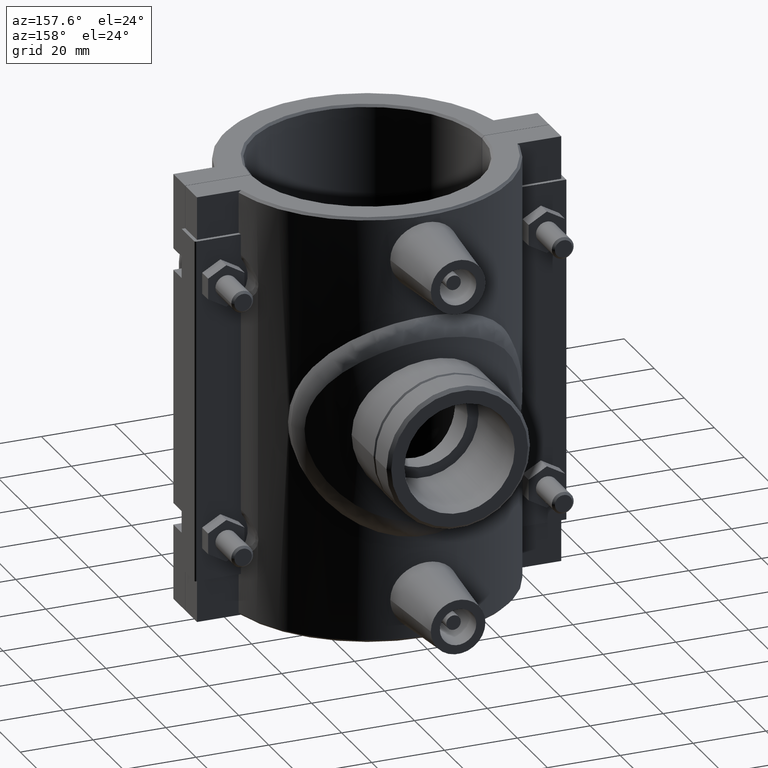
[diagram: clean part render]
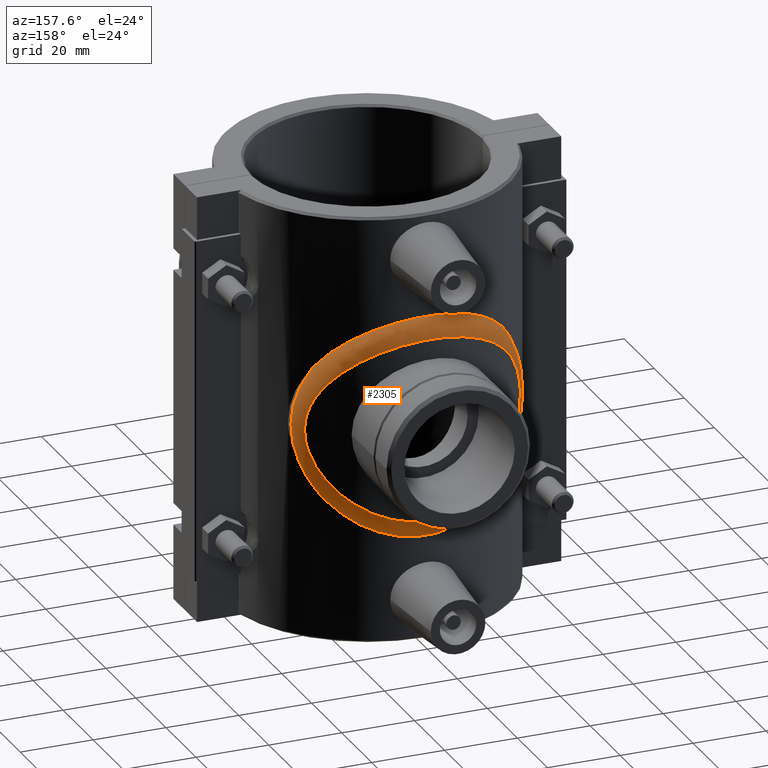
[diagram: same view with one face highlighted and labeled with its STEP entity id]
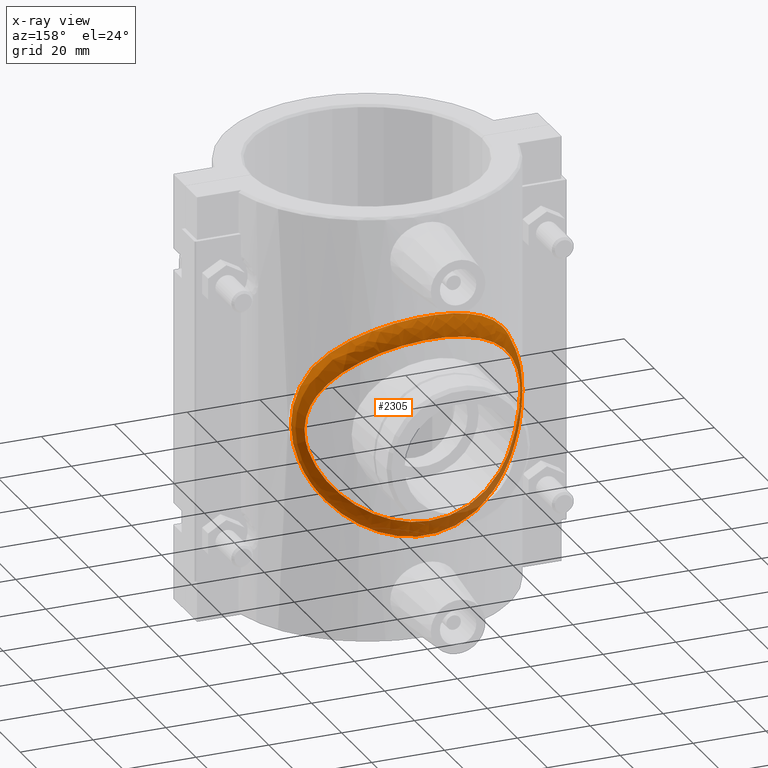
[diagram: x-ray of the same camera — body ghosted, the highlighted face saturated]
A machine part, auxiliary view. The second image highlights one B-rep face of the part: STEP entity #2305.
The next image is the same camera in x-ray: the body ghosted, the highlighted face saturated — about 11% of this face is hidden behind the body in this view.
In plain terms, the highlighted face is a freeform B-spline surface patch.
Its self-contained STEP definition (entity closure, byte-faithful):
#56=B_SPLINE_SURFACE_WITH_KNOTS('',3,3,((#4315,#4316,#4317,#4318,#4319,
#4320,#4321,#4322,#4323,#4324,#4325,#4326,#4327,#4328,#4329,#4330,#4331,
#4332,#4333,#4334,#4335,#4336,#4337,#4338,#4339,#4340,#4341),(#4342,#4343,
#4344,#4345,#4346,#4347,#4348,#4349,#4350,#4351,#4352,#4353,#4354,#4355,
#4356,#4357,#4358,#4359,#4360,#4361,#4362,#4363,#4364,#4365,#4366,#4367,
#4368),(#4369,#4370,#4371,#4372,#4373,#4374,#4375,#4376,#4377,#4378,#4379,
#4380,#4381,#4382,#4383,#4384,#4385,#4386,#4387,#4388,#4389,#4390,#4391,
#4392,#4393,#4394,#4395),(#4396,#4397,#4398,#4399,#4400,#4401,#4402,#4403,
#4404,#4405,#4406,#4407,#4408,#4409,#4410,#4411,#4412,#4413,#4414,#4415,
#4416,#4417,#4418,#4419,#4420,#4421,#4422),(#4423,#4424,#4425,#4426,#4427,
#4428,#4429,#4430,#4431,#4432,#4433,#4434,#4435,#4436,#4437,#4438,#4439,
#4440,#4441,#4442,#4443,#4444,#4445,#4446,#4447,#4448,#4449),(#4450,#4451,
#4452,#4453,#4454,#4455,#4456,#4457,#4458,#4459,#4460,#4461,#4462,#4463,
#4464,#4465,#4466,#4467,#4468,#4469,#4470,#4471,#4472,#4473,#4474,#4475,
#4476)),.UNSPECIFIED.,.F.,.T.,.F.,(4,1,1,4),(4,1,1,1,1,1,1,1,1,1,1,1,1,
1,1,1,1,1,1,1,1,1,1,1,4),(0.,0.285714285714286,0.571428571428571,1.),(-6.65205029876428E-17,
0.716981529182781,1.43396305836556,2.86792611673113,3.58490764591391,4.30188917509669,
5.01887070427947,5.73585223346225,6.69182760570596,7.64780297794967,8.60377835019338,
9.55975372243709,10.0377414085589,10.5157290946808,11.4717044669245,12.4276798391682,
13.3836552114119,14.3396305836556,15.2956059558993,16.251581328143,17.2075567003868,
17.9245382295695,18.6415197587523,19.3585012879351,20.0754828171179),
 .UNSPECIFIED.);
#155=B_SPLINE_CURVE_WITH_KNOTS('',3,(#3781,#3782,#3783,#3784,#3785,#3786,
#3787,#3788,#3789,#3790,#3791,#3792,#3793,#3794,#3795,#3796,#3797,#3798,
#3799,#3800),.UNSPECIFIED.,.F.,.F.,(4,2,2,2,2,2,2,2,2,4),(0.,1.16348620632321,
2.26330441970973,2.8075191023437,3.13775493906589,3.43652113412912,3.82240357718107,
4.56678057629902,5.42160531668723,6.41168342017933),.UNSPECIFIED.);
#157=B_SPLINE_CURVE_WITH_KNOTS('',3,(#3817,#3818,#3819,#3820,#3821,#3822,
#3823,#3824,#3825,#3826,#3827,#3828,#3829,#3830,#3831,#3832,#3833,#3834,
#3835,#3836),.UNSPECIFIED.,.F.,.F.,(4,2,2,2,2,2,2,2,2,4),(0.,1.16349116454586,
2.26325169019806,2.80758392138209,3.13778661780516,3.43657147133626,3.82241099950025,
4.5667290381499,5.42156965460748,6.41168233159869),.UNSPECIFIED.);
#162=B_SPLINE_CURVE_WITH_KNOTS('',3,(#4478,#4479,#4480,#4481,#4482,#4483),
 .UNSPECIFIED.,.F.,.F.,(4,1,1,4),(-21.8059884272607,-21.5094458754834,-20.7924643463007,
-20.0754955147163),.UNSPECIFIED.);
#163=B_SPLINE_CURVE_WITH_KNOTS('',3,(#4486,#4487,#4488,#4489,#4490,#4491,
#4492,#4493,#4494,#4495,#4496,#4497,#4498,#4499,#4500,#4501,#4502,#4503,
#4504,#4505,#4506,#4507,#4508,#4509,#4510,#4511,#4512),.UNSPECIFIED.,.T.,
 .F.,(4,1,1,1,1,1,1,1,1,1,1,1,1,1,1,1,1,1,1,1,1,1,1,1,4),(-6.65205029876428E-17,
0.716981529182781,1.43396305836556,2.86792611673113,3.58490764591391,4.30188917509669,
5.01887070427947,5.73585223346225,6.69182760570596,7.64780297794967,8.60377835019338,
9.55975372243709,10.0377414085589,10.5157290946808,11.4717044669245,12.4276798391682,
13.3836552114119,14.3396305836556,15.2956059558993,16.251581328143,17.2075567003868,
17.9245382295695,18.6415197587523,19.3585012879351,20.0754828171179),
 .UNSPECIFIED.);
#164=B_SPLINE_CURVE_WITH_KNOTS('',3,(#4513,#4514,#4515,#4516,#4517,#4518,
#4519,#4520,#4521),.UNSPECIFIED.,.F.,.F.,(4,3,1,1,4),(-20.0754955147163,
-20.0754828171179,-19.3585012879351,-18.6415197587523,-18.345006999902),
 .UNSPECIFIED.);
#165=B_SPLINE_CURVE_WITH_KNOTS('',3,(#4522,#4523,#4524,#4525,#4526,#4527,
#4528,#4529,#4530,#4531,#4532,#4533,#4534,#4535,#4536,#4537,#4538,#4539,
#4540),.UNSPECIFIED.,.F.,.F.,(4,3,3,3,3,3,4),(-11.768231815017,-11.4717044669245,
-10.5157290946808,-10.0377414085589,-9.55975372243709,-8.60377835019338,
-8.30732304088218),.UNSPECIFIED.);
#274=FACE_OUTER_BOUND('',#455,.T.);
#455=EDGE_LOOP('',(#1977,#1978,#1979,#1980,#1981,#1982,#1983,#1984));
#940=CIRCLE('',#2505,6.3);
#1066=VERTEX_POINT('',#3771);
#1067=VERTEX_POINT('',#3780);
#1068=VERTEX_POINT('',#3801);
#1069=VERTEX_POINT('',#3816);
#1146=VERTEX_POINT('',#4477);
#1147=VERTEX_POINT('',#4484);
#1321=EDGE_CURVE('',#1066,#1067,#155,.T.);
#1323=EDGE_CURVE('',#1068,#1069,#157,.T.);
#1438=EDGE_CURVE('',#1068,#1146,#162,.T.);
#1439=EDGE_CURVE('',#1146,#1147,#940,.T.);
#1440=EDGE_CURVE('',#1147,#1147,#163,.T.);
#1441=EDGE_CURVE('',#1146,#1067,#164,.T.);
#1442=EDGE_CURVE('',#1066,#1069,#165,.T.);
#1977=ORIENTED_EDGE('',*,*,#1323,.F.);
#1978=ORIENTED_EDGE('',*,*,#1438,.T.);
#1979=ORIENTED_EDGE('',*,*,#1439,.T.);
#1980=ORIENTED_EDGE('',*,*,#1440,.T.);
#1981=ORIENTED_EDGE('',*,*,#1439,.F.);
#1982=ORIENTED_EDGE('',*,*,#1441,.T.);
#1983=ORIENTED_EDGE('',*,*,#1321,.F.);
#1984=ORIENTED_EDGE('',*,*,#1442,.T.);
#2305=ADVANCED_FACE('',(#274),#56,.F.);
#2505=AXIS2_PLACEMENT_3D('',#4485,#3045,#3046);
#3045=DIRECTION('center_axis',(8.8112938462314E-17,2.10475277669788E-16,
-1.));
#3046=DIRECTION('ref_axis',(-1.,0.,-8.8112938462314E-17));
#3771=CARTESIAN_POINT('',(26.9187318609177,28.7362575851486,16.3594582734275));
#3780=CARTESIAN_POINT('',(-26.9187318609182,28.7362575851483,16.3594582734267));
#3781=CARTESIAN_POINT('Ctrl Pts',(26.9187318609179,28.7362575851484,16.3594582734271));
#3782=CARTESIAN_POINT('Ctrl Pts',(25.1075197957008,30.4329131702528,19.3397239467736));
#3783=CARTESIAN_POINT('Ctrl Pts',(22.7079269700689,32.3543209201565,22.0194025256257));
#3784=CARTESIAN_POINT('Ctrl Pts',(16.8585127451055,35.7345582435431,26.3505377891985));
#3785=CARTESIAN_POINT('Ctrl Pts',(13.5727981854966,37.1515244484902,27.9776933772116));
#3786=CARTESIAN_POINT('Ctrl Pts',(8.14824236475228,38.5673543153814,29.5742033725196));
#3787=CARTESIAN_POINT('Ctrl Pts',(6.28884869507743,38.9166882570087,29.9589916740709));
#3788=CARTESIAN_POINT('Ctrl Pts',(3.23078689007856,39.2594336804441,30.3354199928792));
#3789=CARTESIAN_POINT('Ctrl Pts',(2.06571963951946,39.3381907417112,30.4213434478583));
#3790=CARTESIAN_POINT('Ctrl Pts',(-0.162960638217514,39.388897656078,30.4767147631299));
#3791=CARTESIAN_POINT('Ctrl Pts',(-1.22186673718899,39.3702309454479,30.456380212008));
#3792=CARTESIAN_POINT('Ctrl Pts',(-3.64020265404604,39.2301366570375,30.3031917510595));
#3793=CARTESIAN_POINT('Ctrl Pts',(-4.9904656479513,39.0806905846304,30.1397223080439));
#3794=CARTESIAN_POINT('Ctrl Pts',(-8.88480487012735,38.4474039383904,29.4395927542055));
#3795=CARTESIAN_POINT('Ctrl Pts',(-11.3373948041858,37.7868769746663,28.7044835331252));
#3796=CARTESIAN_POINT('Ctrl Pts',(-16.2717862212075,35.9655981232211,26.5834644127264));
#3797=CARTESIAN_POINT('Ctrl Pts',(-18.6673322333193,34.7579897946622,25.1330632988056));
#3798=CARTESIAN_POINT('Ctrl Pts',(-23.2305412016014,31.9224858302187,21.4035915009918));
#3799=CARTESIAN_POINT('Ctrl Pts',(-25.2882698095978,30.2635953269834,19.0423081597329));
#3800=CARTESIAN_POINT('Ctrl Pts',(-26.918731860918,28.7362575851484,16.359458273427));
#3801=CARTESIAN_POINT('',(-26.9187318609179,28.7362575851485,-16.3594582734271));
#3816=CARTESIAN_POINT('',(26.918731860918,28.7362575851484,-16.3594582734269));
#3817=CARTESIAN_POINT('Ctrl Pts',(-26.918731860918,28.7362575851484,-16.359458273427));
#3818=CARTESIAN_POINT('Ctrl Pts',(-25.1075120771798,30.4329204005888,-19.3397366472428));
#3819=CARTESIAN_POINT('Ctrl Pts',(-22.7079065146559,32.3543372428927,-22.0194253529859));
#3820=CARTESIAN_POINT('Ctrl Pts',(-16.8586188511121,35.7344926719116,-26.3504519634409));
#3821=CARTESIAN_POINT('Ctrl Pts',(-13.5730938917071,37.1513950824426,-27.9775437058883));
#3822=CARTESIAN_POINT('Ctrl Pts',(-8.14838074241099,38.567344022301,-29.5741936445018));
#3823=CARTESIAN_POINT('Ctrl Pts',(-6.28858354214404,38.9167516983198,-29.9590617929142));
#3824=CARTESIAN_POINT('Ctrl Pts',(-3.23021290364877,39.2594775455611,-30.33546789998));
#3825=CARTESIAN_POINT('Ctrl Pts',(-2.06526012978407,39.338211388797,-30.4213659997121));
#3826=CARTESIAN_POINT('Ctrl Pts',(0.163370198584181,39.3888977489934,-30.4767148596189));
#3827=CARTESIAN_POINT('Ctrl Pts',(1.22234216716818,39.3702179382464,-30.4563660399506));
#3828=CARTESIAN_POINT('Ctrl Pts',(3.64058862415083,39.2300955199836,-30.303146703312));
#3829=CARTESIAN_POINT('Ctrl Pts',(4.99069907648466,39.0806556011334,-30.1396837147458));
#3830=CARTESIAN_POINT('Ctrl Pts',(8.88468493557873,38.447417700566,-29.4396078094639));
#3831=CARTESIAN_POINT('Ctrl Pts',(11.3370884197295,37.7869572202475,-28.704572043046));
#3832=CARTESIAN_POINT('Ctrl Pts',(16.2713973388486,35.9657793692233,-26.5836811626286));
#3833=CARTESIAN_POINT('Ctrl Pts',(18.6670142642517,34.7581650035448,-25.133282234551));
#3834=CARTESIAN_POINT('Ctrl Pts',(23.2303985669664,31.9226003702732,-21.403755485469));
#3835=CARTESIAN_POINT('Ctrl Pts',(25.2882133117724,30.2636482514051,-19.0424011242913));
#3836=CARTESIAN_POINT('Ctrl Pts',(26.918731860918,28.7362575851484,-16.359458273427));
#4315=CARTESIAN_POINT('Ctrl Pts',(-29.6215804615767,30.0701233708278,0.00010415280850218));
#4316=CARTESIAN_POINT('Ctrl Pts',(-29.6217626496003,30.0697865512658,-1.96030865685316));
#4317=CARTESIAN_POINT('Ctrl Pts',(-29.0722979278833,30.6241010499575,-5.8821358975246));
#4318=CARTESIAN_POINT('Ctrl Pts',(-26.0340746190397,33.3798933045314,-12.9738188741493));
#4319=CARTESIAN_POINT('Ctrl Pts',(-20.6474972541707,37.1661028656926,-18.7066510414634));
#4320=CARTESIAN_POINT('Ctrl Pts',(-13.2969869899993,40.2229377030634,-22.7568175811318));
#4321=CARTESIAN_POINT('Ctrl Pts',(-6.91569528045219,41.8262696689989,-24.7351982633128));
#4322=CARTESIAN_POINT('Ctrl Pts',(-0.00188312117154206,42.4021518388467,
-25.4329169246039));
#4323=CARTESIAN_POINT('Ctrl Pts',(7.68852158155299,41.7619502487153,-24.657955596579));
#4324=CARTESIAN_POINT('Ctrl Pts',(15.3628107843253,39.5955928494186,-21.9773067361582));
#4325=CARTESIAN_POINT('Ctrl Pts',(22.0763486849323,36.191670737565,-17.3121526975063));
#4326=CARTESIAN_POINT('Ctrl Pts',(26.948314087373,32.6170592557517,-11.3021493822465));
#4327=CARTESIAN_POINT('Ctrl Pts',(29.2578067195545,30.4313528859741,-5.23546174788485));
#4328=CARTESIAN_POINT('Ctrl Pts',(29.7422743976104,29.9510504825772,-0.000662860777347123));
#4329=CARTESIAN_POINT('Ctrl Pts',(29.2582115729108,30.4311262094227,5.23514619055923));
#4330=CARTESIAN_POINT('Ctrl Pts',(26.9480960857009,32.6166403414341,11.3018498912586));
#4331=CARTESIAN_POINT('Ctrl Pts',(22.0769191404697,36.1925442888274,17.3119718917481));
#4332=CARTESIAN_POINT('Ctrl Pts',(15.3616580002512,39.5943239005878,21.9765333763081));
#4333=CARTESIAN_POINT('Ctrl Pts',(6.99263680007831,41.961172149556,24.9041048433279));
#4334=CARTESIAN_POINT('Ctrl Pts',(-2.36371829093225,42.4924907896312,25.5392700102219));
#4335=CARTESIAN_POINT('Ctrl Pts',(-11.3599072626946,40.9618105404615,23.6907492328842));
#4336=CARTESIAN_POINT('Ctrl Pts',(-18.3108815827598,38.2184866736629,20.1527250648749));
#4337=CARTESIAN_POINT('Ctrl Pts',(-23.3362322964356,35.2813407007189,15.83585309237));
#4338=CARTESIAN_POINT('Ctrl Pts',(-26.7963189733582,32.6859132315554,11.2040584533916));
#4339=CARTESIAN_POINT('Ctrl Pts',(-29.0712047997417,30.6261219673297,5.88034096044536));
#4340=CARTESIAN_POINT('Ctrl Pts',(-29.6213982735531,30.0704601903899,1.96051696247016));
#4341=CARTESIAN_POINT('Ctrl Pts',(-29.6215804615767,30.0701233708278,0.00010415280850218));
#4342=CARTESIAN_POINT('Ctrl Pts',(-29.9604756127638,29.7362379302387,0.0001217462869217));
#4343=CARTESIAN_POINT('Ctrl Pts',(-29.9606745972846,29.7359312150111,-2.01229079558681));
#4344=CARTESIAN_POINT('Ctrl Pts',(-29.4211106373778,30.2931556374322,-6.03826813349672));
#4345=CARTESIAN_POINT('Ctrl Pts',(-26.42699284436,33.0710708384324,-13.3345044054718));
#4346=CARTESIAN_POINT('Ctrl Pts',(-21.083277084834,36.9301724216484,-19.2800443288013));
#4347=CARTESIAN_POINT('Ctrl Pts',(-13.6596380293211,40.1096685786301,-23.5393515633839));
#4348=CARTESIAN_POINT('Ctrl Pts',(-7.1351491511999,41.8005671505798,-25.6436273870517));
#4349=CARTESIAN_POINT('Ctrl Pts',(-0.0022362541519001,42.4152266181603,
-26.3926346986671));
#4350=CARTESIAN_POINT('Ctrl Pts',(7.93345334073285,41.7318710286826,-25.5606036545024));
#4351=CARTESIAN_POINT('Ctrl Pts',(15.7635932741774,39.4487357670512,-22.7111377802084));
#4352=CARTESIAN_POINT('Ctrl Pts',(22.5005586697109,35.9341219350027,-17.8306975562852));
#4353=CARTESIAN_POINT('Ctrl Pts',(27.3307185945155,32.3002967560999,-11.6120388131238));
#4354=CARTESIAN_POINT('Ctrl Pts',(29.6028545456506,30.0993856775661,-5.37413655643366));
#4355=CARTESIAN_POINT('Ctrl Pts',(30.0791767478606,29.6165335597851,-0.000687817973332433));
#4356=CARTESIAN_POINT('Ctrl Pts',(29.6033070140667,30.0991869278767,5.37384957791656));
#4357=CARTESIAN_POINT('Ctrl Pts',(27.3303264502371,32.2997750362159,11.6116208306275));
#4358=CARTESIAN_POINT('Ctrl Pts',(22.5013783120634,35.9351434054078,17.8306590933512));
#4359=CARTESIAN_POINT('Ctrl Pts',(15.7619680790143,39.447177532509,22.7100799475238));
#4360=CARTESIAN_POINT('Ctrl Pts',(7.22415731503527,41.9425446110414,25.8229142952155));
#4361=CARTESIAN_POINT('Ctrl Pts',(-2.44683085142075,42.5117904925339,26.5070567993876));
#4362=CARTESIAN_POINT('Ctrl Pts',(-11.6983689684588,40.881826232583,24.5257499511488));
#4363=CARTESIAN_POINT('Ctrl Pts',(-18.7289731383081,38.0209866600077,20.7962860715896));
#4364=CARTESIAN_POINT('Ctrl Pts',(-23.7501749761127,35.0082644752579,16.3022651195117));
#4365=CARTESIAN_POINT('Ctrl Pts',(-27.178448608116,32.3719942086994,11.5140387908154));
#4366=CARTESIAN_POINT('Ctrl Pts',(-29.4199167302529,30.2949959287976,6.03620711774567));
#4367=CARTESIAN_POINT('Ctrl Pts',(-29.9602766282429,29.7365446454662,2.01253428816065));
#4368=CARTESIAN_POINT('Ctrl Pts',(-29.9604756127638,29.7362379302387,0.0001217462869217));
#4369=CARTESIAN_POINT('Ctrl Pts',(-30.56207719674,28.9913502715172,0.000157326960285435));
#4370=CARTESIAN_POINT('Ctrl Pts',(-30.5623098119661,28.9910872079515,-2.1162379782417));
#4371=CARTESIAN_POINT('Ctrl Pts',(-30.0366538357478,29.5455333428182,-6.35048514407321));
#4372=CARTESIAN_POINT('Ctrl Pts',(-27.1033434844857,32.3193964330605,-14.0556376466304));
#4373=CARTESIAN_POINT('Ctrl Pts',(-21.8174870894321,36.2294758294235,-20.4260086911597));
#4374=CARTESIAN_POINT('Ctrl Pts',(-14.2671458765732,39.541315516214,-25.1020492206294));
#4375=CARTESIAN_POINT('Ctrl Pts',(-7.50250125245667,41.3368910276338,-27.4568705487493));
#4376=CARTESIAN_POINT('Ctrl Pts',(-0.00288478293044948,42.0003948221427,
-28.307852839282));
#4377=CARTESIAN_POINT('Ctrl Pts',(8.34355906910722,41.262557996613,-27.3623414610223));
#4378=CARTESIAN_POINT('Ctrl Pts',(16.4349787887699,38.8407306600082,-24.1769026223344));
#4379=CARTESIAN_POINT('Ctrl Pts',(23.2186319460292,35.2164938989024,-18.8671304455907));
#4380=CARTESIAN_POINT('Ctrl Pts',(27.9929791749581,31.5473715006881,-12.2316638192599));
#4381=CARTESIAN_POINT('Ctrl Pts',(30.213003531647,29.3527134855065,-5.65143894254436));
#4382=CARTESIAN_POINT('Ctrl Pts',(30.6780250364138,28.8722355075062,-0.000736371712884765));
#4383=CARTESIAN_POINT('Ctrl Pts',(30.2135345804948,29.3525575696715,5.65120770298066));
#4384=CARTESIAN_POINT('Ctrl Pts',(27.9922965755607,31.5466975324796,12.2310083577872));
#4385=CARTESIAN_POINT('Ctrl Pts',(23.2198673683184,35.2177431866207,18.8673764274313));
#4386=CARTESIAN_POINT('Ctrl Pts',(16.4325454027198,38.8386964508983,24.175265890287));
#4387=CARTESIAN_POINT('Ctrl Pts',(7.6118328971061,41.4871694275243,27.6568235519307));
#4388=CARTESIAN_POINT('Ctrl Pts',(-2.58612920335445,42.1047417759797,28.4382929923474));
#4389=CARTESIAN_POINT('Ctrl Pts',(-12.2648069122659,40.3509527239041,26.1929562110957));
#4390=CARTESIAN_POINT('Ctrl Pts',(-19.4316235489722,37.3602458627877,22.0821141209329));
#4391=CARTESIAN_POINT('Ctrl Pts',(-24.454665594199,34.2810854108721,17.234551331339));
#4392=CARTESIAN_POINT('Ctrl Pts',(-27.8400850051824,31.621974246444,12.1338220605506));
#4393=CARTESIAN_POINT('Ctrl Pts',(-30.0352581443916,29.5471117242125,6.34788668713871));
#4394=CARTESIAN_POINT('Ctrl Pts',(-30.561844581514,28.9916133350829,2.11655263216227));
#4395=CARTESIAN_POINT('Ctrl Pts',(-30.56207719674,28.9913502715172,0.000157326960285435));
#4396=CARTESIAN_POINT('Ctrl Pts',(-31.296128954953,27.4846933312099,0.000194609911179195));
#4397=CARTESIAN_POINT('Ctrl Pts',(-31.2963803981479,27.4844466271376,-2.28885157137798));
#4398=CARTESIAN_POINT('Ctrl Pts',(-30.7682477276353,28.0103467905154,-6.86872266199976));
#4399=CARTESIAN_POINT('Ctrl Pts',(-27.8140770999823,30.6422230932064,-15.226207576107));
#4400=CARTESIAN_POINT('Ctrl Pts',(-22.4696728847995,34.3583897122198,-22.2020589988855));
#4401=CARTESIAN_POINT('Ctrl Pts',(-14.747762785636,37.5223744640318,-27.394018378821));
#4402=CARTESIAN_POINT('Ctrl Pts',(-7.77554676148379,39.2457510564142,-30.034585297638));
#4403=CARTESIAN_POINT('Ctrl Pts',(-0.00327088504032298,39.885196972163,
-30.9957578864937));
#4404=CARTESIAN_POINT('Ctrl Pts',(8.64798271255289,39.1739939493615,-29.9276980168719));
#4405=CARTESIAN_POINT('Ctrl Pts',(16.9764690293544,36.8504917998153,-26.3573717660843));
#4406=CARTESIAN_POINT('Ctrl Pts',(23.8859541830155,33.3952505299453,-20.4907407090124));
#4407=CARTESIAN_POINT('Ctrl Pts',(28.7118716231333,29.9094547867188,-13.2442760753341));
#4408=CARTESIAN_POINT('Ctrl Pts',(30.9451072836561,27.8274633919661,-6.1121619054105));
#4409=CARTESIAN_POINT('Ctrl Pts',(31.4127632797002,27.3717056273132,-0.000799848705870582));
#4410=CARTESIAN_POINT('Ctrl Pts',(30.9456749308691,27.8273248434806,6.11195476293069));
#4411=CARTESIAN_POINT('Ctrl Pts',(28.711062225672,29.9087789269958,13.2434123248946));
#4412=CARTESIAN_POINT('Ctrl Pts',(23.8873734006002,33.3965027411638,20.491197885842));
#4413=CARTESIAN_POINT('Ctrl Pts',(16.9736552628422,36.8484231756158,26.355215322279));
#4414=CARTESIAN_POINT('Ctrl Pts',(7.89533199993397,39.3898168442629,30.2584862947809));
#4415=CARTESIAN_POINT('Ctrl Pts',(-2.68571325141422,39.9857340957542,31.1432522416199));
#4416=CARTESIAN_POINT('Ctrl Pts',(-12.6967783096589,38.2970418266146,28.6101500384533));
#4417=CARTESIAN_POINT('Ctrl Pts',(-20.0331282828599,35.4375720800604,24.0356936781987));
#4418=CARTESIAN_POINT('Ctrl Pts',(-25.1356967002399,32.5065653382471,18.7065203141652));
#4419=CARTESIAN_POINT('Ctrl Pts',(-28.5563193943691,29.9805434759594,13.1422672297533));
#4420=CARTESIAN_POINT('Ctrl Pts',(-30.7667390684658,28.0118270149496,6.86555442573521));
#4421=CARTESIAN_POINT('Ctrl Pts',(-31.2958775117581,27.4849400352823,2.28924079120034));
#4422=CARTESIAN_POINT('Ctrl Pts',(-31.296128954953,27.4846933312099,0.000194609911179195));
#4423=CARTESIAN_POINT('Ctrl Pts',(-31.5004592645094,26.2956399723392,0.000165415192363128));
#4424=CARTESIAN_POINT('Ctrl Pts',(-31.5006747421742,26.2953668061107,-2.39579345297299));
#4425=CARTESIAN_POINT('Ctrl Pts',(-30.9433586326301,26.7873280760785,-7.18925551635028));
#4426=CARTESIAN_POINT('Ctrl Pts',(-27.8439474306181,29.2397732358676,-15.9026953413714));
#4427=CARTESIAN_POINT('Ctrl Pts',(-22.2881061872964,32.6468994056591,-23.0734858765823));
#4428=CARTESIAN_POINT('Ctrl Pts',(-14.4876875799136,35.4599888574498,-28.282224990857));
#4429=CARTESIAN_POINT('Ctrl Pts',(-7.58530879259376,36.9597417546553,-30.8799939332359));
#4430=CARTESIAN_POINT('Ctrl Pts',(-0.00242968496212728,37.506234310562,
-31.8112124106832));
#4431=CARTESIAN_POINT('Ctrl Pts',(8.43434211744742,36.8986138408182,-30.7769089363293));
#4432=CARTESIAN_POINT('Ctrl Pts',(16.7089548383268,34.8740817305594,-27.2601817845812));
#4433=CARTESIAN_POINT('Ctrl Pts',(23.7616817863849,31.7675203911355,-21.3210291587891));
#4434=CARTESIAN_POINT('Ctrl Pts',(28.7811889558549,28.5592750593705,-13.841636294285));
#4435=CARTESIAN_POINT('Ctrl Pts',(31.1308475810118,26.616268784334,-6.39808310394546));
#4436=CARTESIAN_POINT('Ctrl Pts',(31.6231642144871,26.1899493415136,-0.000827196663030675));
#4437=CARTESIAN_POINT('Ctrl Pts',(31.1313561816632,26.6160956457172,6.39777428222225));
#4438=CARTESIAN_POINT('Ctrl Pts',(28.7806663855914,28.5588069897595,13.841034374144));
#4439=CARTESIAN_POINT('Ctrl Pts',(23.7627018778433,31.7684446712758,21.3210960187846));
#4440=CARTESIAN_POINT('Ctrl Pts',(16.7069845586287,34.8726700463908,27.2587897465619));
#4441=CARTESIAN_POINT('Ctrl Pts',(7.68517324507578,37.0855646923302,31.1010534758938));
#4442=CARTESIAN_POINT('Ctrl Pts',(-2.60562167947121,37.5921143696126,31.9539740938052));
#4443=CARTESIAN_POINT('Ctrl Pts',(-12.4238609827917,36.1436697136267,29.4930648413679));
#4444=CARTESIAN_POINT('Ctrl Pts',(-19.8177621222394,33.6115411381336,24.9225688373423));
#4445=CARTESIAN_POINT('Ctrl Pts',(-25.0606268390545,30.9501470848424,19.481368320392));
#4446=CARTESIAN_POINT('Ctrl Pts',(-28.6219436677482,28.6225637123817,13.7290813330275));
#4447=CARTESIAN_POINT('Ctrl Pts',(-30.9420657666409,26.7889670734493,7.18649769264186));
#4448=CARTESIAN_POINT('Ctrl Pts',(-31.5002437868445,26.2959131385676,2.39612428335772));
#4449=CARTESIAN_POINT('Ctrl Pts',(-31.5004592645094,26.2956399723392,0.000165415192363128));
#4450=CARTESIAN_POINT('Ctrl Pts',(-31.5005613117514,25.5820452557789,0.000130191010635298));
#4451=CARTESIAN_POINT('Ctrl Pts',(-31.500755056478,25.5817587077933,-2.45038582106642));
#4452=CARTESIAN_POINT('Ctrl Pts',(-30.9164362292789,26.0533396992175,-7.35266987190569));
#4453=CARTESIAN_POINT('Ctrl Pts',(-27.6854898000982,28.3978196769894,-16.2172735926867));
#4454=CARTESIAN_POINT('Ctrl Pts',(-21.9572265576069,31.6189233334997,-23.3833138018293));
#4455=CARTESIAN_POINT('Ctrl Pts',(-14.1404525826486,34.2195141652927,-28.4460219764148));
#4456=CARTESIAN_POINT('Ctrl Pts',(-7.35437744376446,35.5835428527305,-30.918997829141));
#4457=CARTESIAN_POINT('Ctrl Pts',(-0.00200257288763882,36.0734724599143,
-31.7911461557549));
#4458=CARTESIAN_POINT('Ctrl Pts',(8.17622630874104,35.528823345922,-30.8224444957238));
#4459=CARTESIAN_POINT('Ctrl Pts',(16.3373174385549,33.6858028718934,-27.4716334201978));
#4460=CARTESIAN_POINT('Ctrl Pts',(23.4767140865884,30.7899288364359,-21.6401908718829));
#4461=CARTESIAN_POINT('Ctrl Pts',(28.6577220705272,27.7488414563857,-14.1276867278082));
#4462=CARTESIAN_POINT('Ctrl Pts',(31.1137123696755,25.8893599179183,-6.54432718485605));
#4463=CARTESIAN_POINT('Ctrl Pts',(31.628911206414,25.4807444404015,-0.000828575971683156));
#4464=CARTESIAN_POINT('Ctrl Pts',(31.1141429040282,25.889167073688,6.54393273819904));
#4465=CARTESIAN_POINT('Ctrl Pts',(28.6574902403909,27.7484850665931,14.1273123640733));
#4466=CARTESIAN_POINT('Ctrl Pts',(23.4773207277382,30.7906720069128,21.6399648646851));
#4467=CARTESIAN_POINT('Ctrl Pts',(16.336091530118,33.6847233184105,27.4706667203852));
#4468=CARTESIAN_POINT('Ctrl Pts',(7.43619958217282,35.6983106346969,31.1301310541598));
#4469=CARTESIAN_POINT('Ctrl Pts',(-2.5136556452078,36.1503279852086,31.9240875127774));
#4470=CARTESIAN_POINT('Ctrl Pts',(-12.0804983950297,34.848107474721,29.6134365411053));
#4471=CARTESIAN_POINT('Ctrl Pts',(-19.4723927279348,32.5142349313251,25.1909063310937));
#4472=CARTESIAN_POINT('Ctrl Pts',(-24.8165156883736,30.015468954343,19.7948163654625));
#4473=CARTESIAN_POINT('Ctrl Pts',(-28.4960854753995,27.8074187193829,14.0050730667396));
#4474=CARTESIAN_POINT('Ctrl Pts',(-30.9152737609193,26.0550589871312,7.35042620055663));
#4475=CARTESIAN_POINT('Ctrl Pts',(-31.5003675670248,25.5823318037646,2.45064620308769));
#4476=CARTESIAN_POINT('Ctrl Pts',(-31.5005613117514,25.5820452557789,0.000130191010635298));
#4477=CARTESIAN_POINT('',(-31.5,25.5829650353512,-4.64905891561784E-15));
#4478=CARTESIAN_POINT('Ctrl Pts',(-26.9190638519455,28.7357255522298,-16.359901620308));
#4479=CARTESIAN_POINT('Ctrl Pts',(-27.4092113961632,28.4425134005704,-15.5514687103489));
#4480=CARTESIAN_POINT('Ctrl Pts',(-28.9668842902838,27.4679980932162,-12.7015686392104));
#4481=CARTESIAN_POINT('Ctrl Pts',(-30.9164219244264,26.0533500792845,-7.35270911949213));
#4482=CARTESIAN_POINT('Ctrl Pts',(-31.5007447082284,25.5817670594526,-2.45047263949233));
#4483=CARTESIAN_POINT('Ctrl Pts',(-31.5005613217699,25.5820452407769,-3.42438401783955E-9));
#4484=CARTESIAN_POINT('',(-29.621052631579,30.0712045152373,-3.33066907387547E-15));
#4485=CARTESIAN_POINT('Origin',(-25.2,25.5829650353512,-3.88578058618805E-15));
#4486=CARTESIAN_POINT('Ctrl Pts',(-29.6215804615767,30.0701233708278,0.000104152808501634));
#4487=CARTESIAN_POINT('Ctrl Pts',(-29.6217626496003,30.0697865512658,-1.96030865685316));
#4488=CARTESIAN_POINT('Ctrl Pts',(-29.0722979278833,30.6241010499575,-5.8821358975246));
#4489=CARTESIAN_POINT('Ctrl Pts',(-26.0340746190397,33.3798933045314,-12.9738188741493));
#4490=CARTESIAN_POINT('Ctrl Pts',(-20.6474972541707,37.1661028656926,-18.7066510414634));
#4491=CARTESIAN_POINT('Ctrl Pts',(-13.2969869899993,40.2229377030634,-22.7568175811318));
#4492=CARTESIAN_POINT('Ctrl Pts',(-6.91569528045219,41.8262696689989,-24.7351982633128));
#4493=CARTESIAN_POINT('Ctrl Pts',(-0.00188312117154206,42.4021518388467,
-25.4329169246039));
#4494=CARTESIAN_POINT('Ctrl Pts',(7.68852158155299,41.7619502487153,-24.657955596579));
#4495=CARTESIAN_POINT('Ctrl Pts',(15.3628107843253,39.5955928494186,-21.9773067361582));
#4496=CARTESIAN_POINT('Ctrl Pts',(22.0763486849323,36.191670737565,-17.3121526975063));
#4497=CARTESIAN_POINT('Ctrl Pts',(26.948314087373,32.6170592557517,-11.3021493822465));
#4498=CARTESIAN_POINT('Ctrl Pts',(29.2578067195545,30.4313528859741,-5.23546174788485));
#4499=CARTESIAN_POINT('Ctrl Pts',(29.7422743976104,29.9510504825772,-0.000662860777347123));
#4500=CARTESIAN_POINT('Ctrl Pts',(29.2582115729108,30.4311262094227,5.23514619055923));
#4501=CARTESIAN_POINT('Ctrl Pts',(26.9480960857009,32.6166403414341,11.3018498912586));
#4502=CARTESIAN_POINT('Ctrl Pts',(22.0769191404697,36.1925442888274,17.3119718917481));
#4503=CARTESIAN_POINT('Ctrl Pts',(15.3616580002512,39.5943239005878,21.9765333763081));
#4504=CARTESIAN_POINT('Ctrl Pts',(6.99263680007831,41.961172149556,24.9041048433279));
#4505=CARTESIAN_POINT('Ctrl Pts',(-2.36371829093225,42.4924907896312,25.5392700102219));
#4506=CARTESIAN_POINT('Ctrl Pts',(-11.3599072626946,40.9618105404615,23.6907492328842));
#4507=CARTESIAN_POINT('Ctrl Pts',(-18.3108815827598,38.2184866736629,20.1527250648749));
#4508=CARTESIAN_POINT('Ctrl Pts',(-23.3362322964356,35.2813407007189,15.83585309237));
#4509=CARTESIAN_POINT('Ctrl Pts',(-26.7963189733582,32.6859132315554,11.2040584533916));
#4510=CARTESIAN_POINT('Ctrl Pts',(-29.0712047997417,30.6261219673297,5.88034096044536));
#4511=CARTESIAN_POINT('Ctrl Pts',(-29.6213982735531,30.0704601903899,1.96051696247016));
#4512=CARTESIAN_POINT('Ctrl Pts',(-29.6215804615767,30.0701233708278,0.000104152808502178));
#4513=CARTESIAN_POINT('Ctrl Pts',(-31.5005613217699,25.5820452407769,-3.42438401783955E-9));
#4514=CARTESIAN_POINT('Ctrl Pts',(-31.5005613185221,25.5820452457036,4.33947208182027E-5));
#4515=CARTESIAN_POINT('Ctrl Pts',(-31.5005613151826,25.5820452507042,8.67928658251033E-5));
#4516=CARTESIAN_POINT('Ctrl Pts',(-31.5005613117514,25.5820452557789,0.000130191010635298));
#4517=CARTESIAN_POINT('Ctrl Pts',(-31.5003675670248,25.5823318037646,2.45064620308769));
#4518=CARTESIAN_POINT('Ctrl Pts',(-30.9152737609193,26.0550589871312,7.35042620055663));
#4519=CARTESIAN_POINT('Ctrl Pts',(-28.9689907884902,27.4648657098515,12.7042161311317));
#4520=CARTESIAN_POINT('Ctrl Pts',(-27.4093667260653,28.4423083581982,15.5517568653553));
#4521=CARTESIAN_POINT('Ctrl Pts',(-26.9186838913174,28.7363726549051,16.3593872312545));
#4522=CARTESIAN_POINT('Ctrl Pts',(26.9188169498545,28.7357514721988,16.3624002470976));
#4523=CARTESIAN_POINT('Ctrl Pts',(27.4092597292533,28.4418940669984,15.5549503510477));
#4524=CARTESIAN_POINT('Ctrl Pts',(27.8652566668312,28.1562708726584,14.7215752394776));
#4525=CARTESIAN_POINT('Ctrl Pts',(28.2854591876763,27.8836526247321,13.8627451890004));
#4526=CARTESIAN_POINT('Ctrl Pts',(29.6401513058459,27.0047578694311,11.0939605137236));
#4527=CARTESIAN_POINT('Ctrl Pts',(30.6228123713008,26.261030672269,8.06060866337388));
#4528=CARTESIAN_POINT('Ctrl Pts',(31.1219554939143,25.8769807287862,4.8679042752004));
#4529=CARTESIAN_POINT('Ctrl Pts',(31.3715270552211,25.6849557570448,3.27155208111367));
#4530=CARTESIAN_POINT('Ctrl Pts',(31.5002191308175,25.5828500987231,1.63536175257099));
#4531=CARTESIAN_POINT('Ctrl Pts',(31.5001653140235,25.5828742042519,-0.000670737810888044));
#4532=CARTESIAN_POINT('Ctrl Pts',(31.5001114972294,25.5828983097807,-1.63670322819277));
#4533=CARTESIAN_POINT('Ctrl Pts',(31.3713117880448,25.6850521791599,-3.27257788041386));
#4534=CARTESIAN_POINT('Ctrl Pts',(31.1217126286451,25.8771201946438,-4.86871828475806));
#4535=CARTESIAN_POINT('Ctrl Pts',(30.6225143098458,26.2612562256118,-8.06099909344647));
#4536=CARTESIAN_POINT('Ctrl Pts',(29.6401181901865,27.0050488409988,-11.0943429106273));
#4537=CARTESIAN_POINT('Ctrl Pts',(28.2854187997004,27.8837930453673,-13.8630988432302));
#4538=CARTESIAN_POINT('Ctrl Pts',(27.8653161082601,28.1562983760225,-14.7217113349731));
#4539=CARTESIAN_POINT('Ctrl Pts',(27.4094102115304,28.4417815659205,-15.5548792628593));
#4540=CARTESIAN_POINT('Ctrl Pts',(26.919070095781,28.7354963210899,-16.3621377294205));